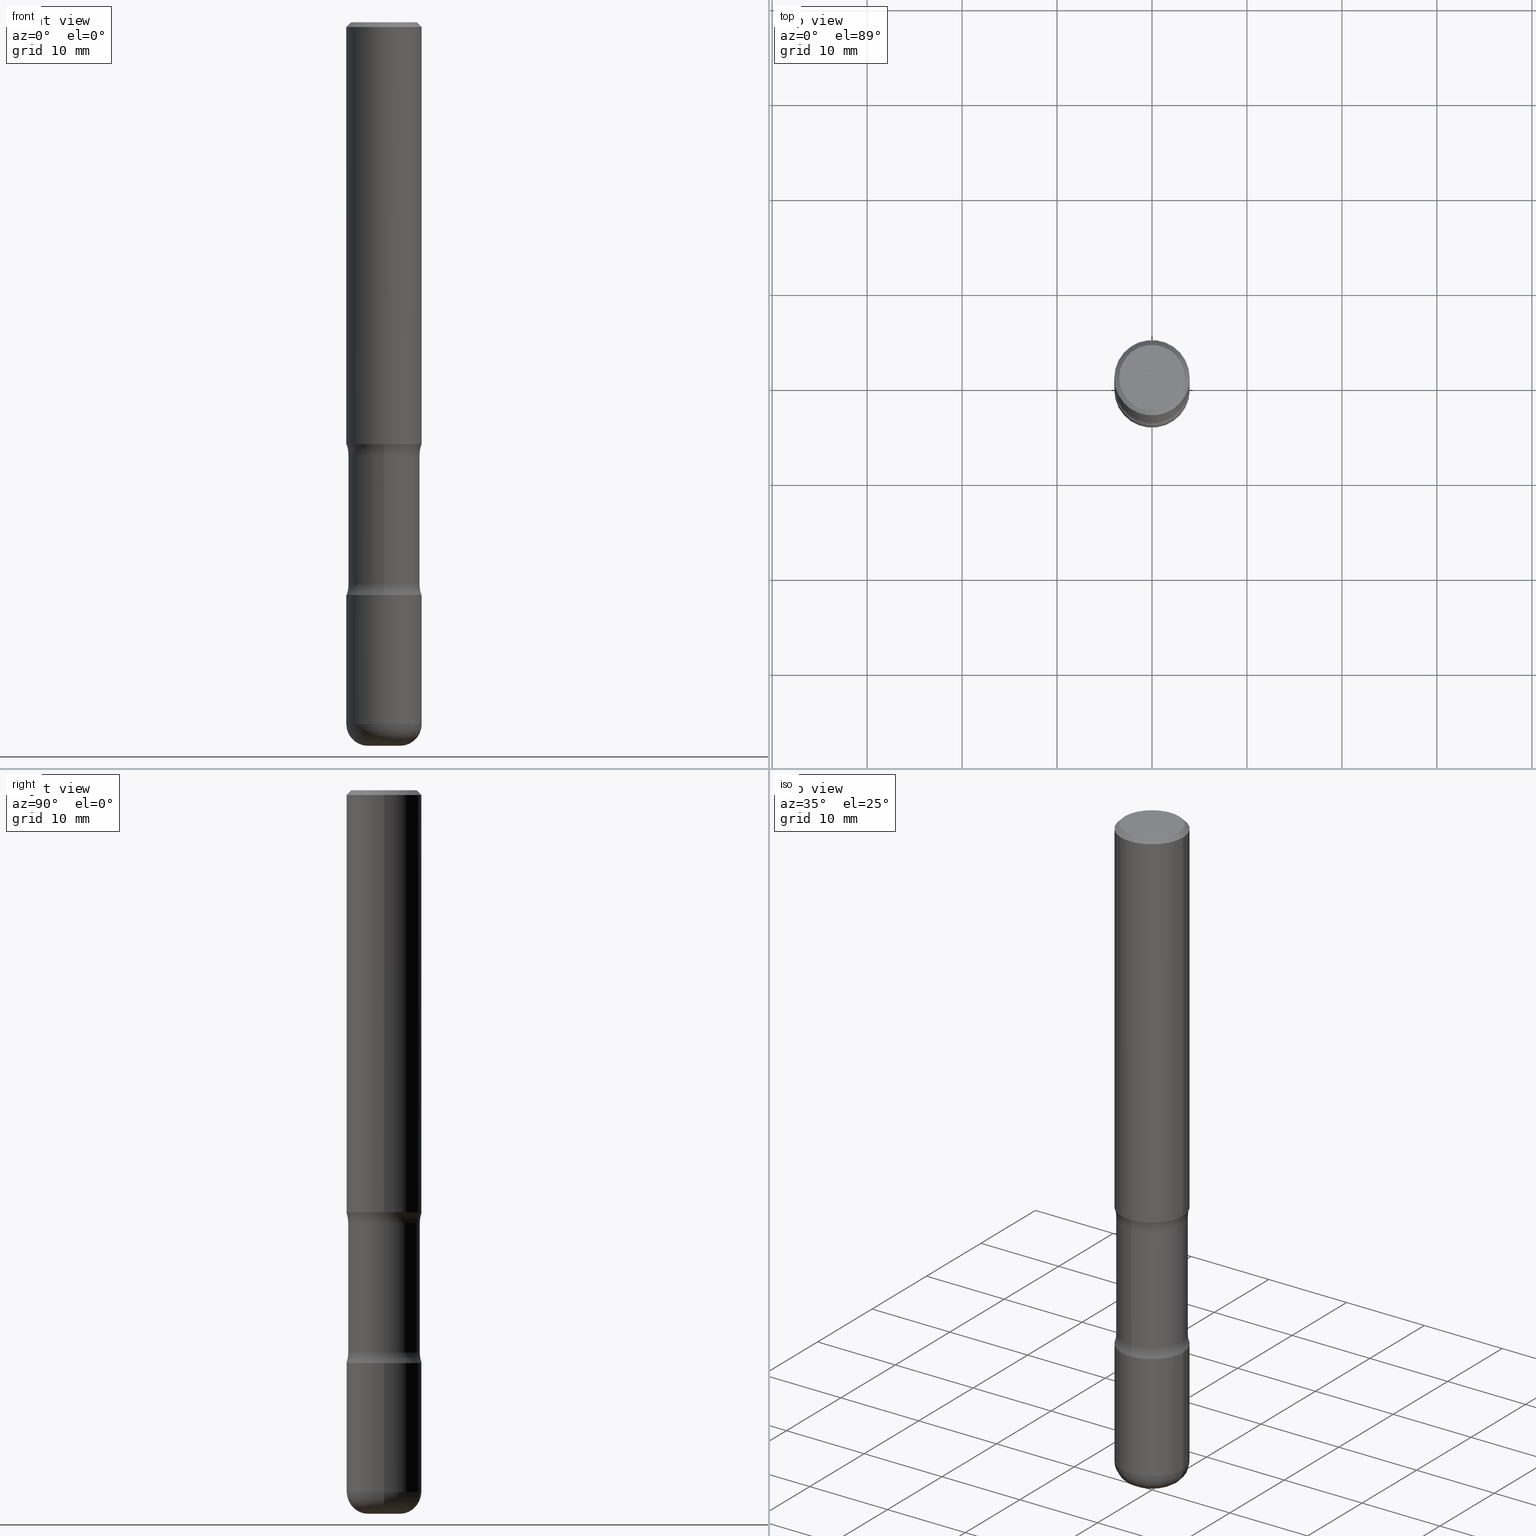
[diagram: canonical four-view strip — front | top / right | iso, engineering-drawing reading convention]
A machine part, canonical four-view strip (front | top / right | iso — engineering-drawing reading convention). The complete STEP part file that produces these views, byte-faithful:
ISO-10303-21;
HEADER;
FILE_DESCRIPTION (( 'STEP AP203' ),
    '1' );
FILE_NAME ('37829.STEP',
    '2024-03-02T00:37:00',
    ( '' ),
    ( '' ),
    'SwSTEP 2.0',
    'SolidWorks 2023',
    '' );
FILE_SCHEMA (( 'CONFIG_CONTROL_DESIGN' ));
ENDSEC;

DATA;
#1 = DIRECTION ( 'NONE',  ( 2.523926373086038410E-29, -3.379125637513666367E-15, -1.000000000000000000 ) ) ;
#2 = CARTESIAN_POINT ( 'NONE',  ( -0.1562499999999998612, 1.021258291611615284E-15, -0.02000000000000000042 ) ) ;
#3 = ORIENTED_EDGE ( 'NONE', *, *, #297, .F. ) ;
#4 = APPLICATION_CONTEXT ( 'configuration controlled 3d designs of mechanical parts and assemblies' ) ;
#5 = FACE_OUTER_BOUND ( 'NONE', #385, .T. ) ;
#6 = ORIENTED_EDGE ( 'NONE', *, *, #399, .F. ) ;
#7 = AXIS2_PLACEMENT_3D ( 'NONE', #480, #434, #231 ) ;
#8 = DIRECTION ( 'NONE',  ( -2.445468806185136597E-29, 3.491481338843145583E-15, 1.000000000000000000 ) ) ;
#9 = CIRCLE ( 'NONE', #58, 0.1562500000000000833 ) ;
#10 = CARTESIAN_POINT ( 'NONE',  ( 4.340320582405264943E-29, -6.327300400853882778E-15, -1.793498159084609966 ) ) ;
#11 = VERTEX_POINT ( 'NONE', #51 ) ;
#12 = DIRECTION ( 'NONE',  ( 1.000000000000000000, -6.982962677686270655E-15, 4.883557194083114583E-29 ) ) ;
#13 = ORIENTED_EDGE ( 'NONE', *, *, #205, .F. ) ;
#14 = EDGE_CURVE ( 'NONE', #130, #109, #290, .T. ) ;
#15 = DIRECTION ( 'NONE',  ( 6.982962677686266711E-15, 1.000000000000000000, -3.680805717779217644E-15 ) ) ;
#16 = DIRECTION ( 'NONE',  ( 2.523926373086038410E-29, -3.379125637513666367E-15, -1.000000000000000000 ) ) ;
#17 = AXIS2_PLACEMENT_3D ( 'NONE', #93, #222, #560 ) ;
#18 = APPROVAL_PERSON_ORGANIZATION ( #339, #287, #422 ) ;
#19 = DIRECTION ( 'NONE',  ( 2.523926373086038410E-29, -3.379125637513666367E-15, -1.000000000000000000 ) ) ;
#20 =( LENGTH_UNIT ( ) NAMED_UNIT ( * ) SI_UNIT ( $, .METRE. ) );
#21 = CARTESIAN_POINT ( 'NONE',  ( 0.1362499999999998712, -1.038262645562517138E-15, 6.957025900226689470E-30 ) ) ;
#22 = EDGE_CURVE ( 'NONE', #437, #301, #504, .T. ) ;
#23 = FACE_OUTER_BOUND ( 'NONE', #31, .T. ) ;
#24 = DIRECTION ( 'NONE',  ( 2.523926373086038410E-29, -3.379125637513666367E-15, -1.000000000000000000 ) ) ;
#25 = CARTESIAN_POINT ( 'NONE',  ( 0.000000000000000000, 0.000000000000000000, 0.000000000000000000 ) ) ;
#26 = AXIS2_PLACEMENT_3D ( 'NONE', #226, #531, #56 ) ;
#27 = CC_DESIGN_PERSON_AND_ORGANIZATION_ASSIGNMENT ( #417, #508, ( #279 ) ) ;
#28 = CARTESIAN_POINT ( 'NONE',  ( 4.279570410823989605E-29, -6.110092342975506249E-15, -1.750000000000000444 ) ) ;
#29 = PERSON_AND_ORGANIZATION ( #41, #525 ) ;
#30 = EDGE_CURVE ( 'NONE', #484, #266, #393, .T. ) ;
#31 = EDGE_LOOP ( 'NONE', ( #217, #64, #400, #133 ) ) ;
#32 = CIRCLE ( 'NONE', #395, 0.1250000000000000000 ) ;
#33 = LOCAL_TIME ( 19, 37, 0.000000000000000000, #210 ) ;
#34 = EDGE_LOOP ( 'NONE', ( #549, #510 ) ) ;
#35 = PERSON_AND_ORGANIZATION_ROLE ( 'design_supplier' ) ;
#36 = CARTESIAN_POINT ( 'NONE',  ( 7.116314225998750366E-29, -1.016021069603355624E-14, -2.910000000000001030 ) ) ;
#37 = EDGE_LOOP ( 'NONE', ( #80, #463, #452, #183 ) ) ;
#38 = SHAPE_DEFINITION_REPRESENTATION ( #120, #275 ) ;
#39 = ADVANCED_FACE ( 'NONE', ( #481 ), #356, .T. ) ;
#40 = DIRECTION ( 'NONE',  ( 2.523926373086038410E-29, -3.379125637513666367E-15, -1.000000000000000000 ) ) ;
#41 = PERSON ( 'UNSPECIFIED', 'UNSPECIFIED', 'UNSPECIFIED', ('UNSPECIFIED'), ('UNSPECIFIED'), ('UNSPECIFIED') ) ;
#42 = ORIENTED_EDGE ( 'NONE', *, *, #267, .F. ) ;
#43 = AXIS2_PLACEMENT_3D ( 'NONE', #237, #1, #235 ) ;
#44 = CARTESIAN_POINT ( 'NONE',  ( -0.1562500000000001110, -8.116016413267856641E-15, -2.375000000000000444 ) ) ;
#45 = VECTOR ( 'NONE', #351, 39.37007874015748143 ) ;
#46 = ORIENTED_EDGE ( 'NONE', *, *, #229, .T. ) ;
#47 = AXIS2_PLACEMENT_3D ( 'NONE', #244, #493, #448 ) ;
#48 = DIRECTION ( 'NONE',  ( -2.445468806185136597E-29, 3.491481338843145583E-15, 1.000000000000000000 ) ) ;
#49 = EDGE_CURVE ( 'NONE', #338, #171, #219, .T. ) ;
#50 = DIRECTION ( 'NONE',  ( 1.000000000000000000, -6.982962677686266711E-15, 0.000000000000000000 ) ) ;
#51 = CARTESIAN_POINT ( 'NONE',  ( -0.1562500000000000833, -1.979737960251025472E-15, -1.750000000000000444 ) ) ;
#52 = CARTESIAN_POINT ( 'NONE',  ( -0.06625000000000019762, -9.526848562748387493E-15, -3.000000000000001332 ) ) ;
#53 = CARTESIAN_POINT ( 'NONE',  ( 5.807988414689700538E-29, -8.292268179752471696E-15, -2.375000000000000444 ) ) ;
#54 = DIRECTION ( 'NONE',  ( 1.000000000000000000, -6.982962677686266711E-15, 4.876176775795936353E-29 ) ) ;
#55 = DIRECTION ( 'NONE',  ( 2.523926373086038410E-29, -3.379125637513666367E-15, -1.000000000000000000 ) ) ;
#56 = DIRECTION ( 'NONE',  ( 1.000000000000000000, -6.982962677686266711E-15, 4.876176775795936353E-29 ) ) ;
#57 = VECTOR ( 'NONE', #164, 39.37007874015748143 ) ;
#58 = AXIS2_PLACEMENT_3D ( 'NONE', #153, #114, #242 ) ;
#59 = CARTESIAN_POINT ( 'NONE',  ( -4.449379229173183633E-28, -8.469823856136963585E-14, -3.000000000000000888 ) ) ;
#60 = ORIENTED_EDGE ( 'NONE', *, *, #205, .T. ) ;
#61 = VERTEX_POINT ( 'NONE', #180 ) ;
#62 = CARTESIAN_POINT ( 'NONE',  ( 0.000000000000000000, 0.000000000000000000, 0.000000000000000000 ) ) ;
#63 = EDGE_CURVE ( 'NONE', #61, #88, #170, .T. ) ;
#64 = ORIENTED_EDGE ( 'NONE', *, *, #440, .T. ) ;
#65 = LINE ( 'NONE', #331, #544 ) ;
#66 = CARTESIAN_POINT ( 'NONE',  ( 1.036533522469128973E-15, 0.1484374999999896194, -3.000000000000000444 ) ) ;
#67 = DIRECTION ( 'NONE',  ( -2.445468806185136597E-29, 3.491481338843145583E-15, 1.000000000000000000 ) ) ;
#68 = CIRCLE ( 'NONE', #383, 0.1362499999999998712 ) ;
#69 = DIRECTION ( 'NONE',  ( 2.523926373086038410E-29, -3.379125637513666367E-15, -1.000000000000000000 ) ) ;
#70 = CARTESIAN_POINT ( 'NONE',  ( 7.336406418555413153E-29, -1.047444401652944109E-14, -3.000000000000001332 ) ) ;
#71 = FACE_OUTER_BOUND ( 'NONE', #342, .T. ) ;
#72 = CARTESIAN_POINT ( 'NONE',  ( -1.071952812151760391E-15, -0.1562500000000063560, -1.750000000000000000 ) ) ;
#73 = APPROVAL_PERSON_ORGANIZATION ( #307, #364, #337 ) ;
#74 = FACE_OUTER_BOUND ( 'NONE', #527, .T. ) ;
#75 = APPROVAL_STATUS ( 'not_yet_approved' ) ;
#76 = ADVANCED_FACE ( 'NONE', ( #149 ), #323, .F. ) ;
#77 = CARTESIAN_POINT ( 'NONE',  ( 4.279570410823989605E-29, -6.110092342975506249E-15, -1.750000000000000444 ) ) ;
#78 = ORIENTED_EDGE ( 'NONE', *, *, #239, .F. ) ;
#79 = PERSON_AND_ORGANIZATION ( #41, #525 ) ;
#80 = ORIENTED_EDGE ( 'NONE', *, *, #305, .F. ) ;
#81 = APPLICATION_PROTOCOL_DEFINITION ( 'international standard', 'config_control_design', 1994, #414 ) ;
#82 = TOROIDAL_SURFACE ( 'NONE', #358, 0.2734375000000000555, 0.1250000000000000000 ) ;
#83 = CIRCLE ( 'NONE', #450, 0.06625000000000019762 ) ;
#84 = EDGE_LOOP ( 'NONE', ( #336, #430, #419, #380 ) ) ;
#85 = CC_DESIGN_DATE_AND_TIME_ASSIGNMENT ( #168, #472, ( #251 ) ) ;
#86 = FACE_OUTER_BOUND ( 'NONE', #84, .T. ) ;
#87 = ORIENTED_EDGE ( 'NONE', *, *, #267, .T. ) ;
#88 = VERTEX_POINT ( 'NONE', #136 ) ;
#89 = DIRECTION ( 'NONE',  ( -0.7071067811865473507, 2.468850131082255088E-15, -0.7071067811865476838 ) ) ;
#90 = AXIS2_PLACEMENT_3D ( 'NONE', #135, #142, #533 ) ;
#91 = EDGE_LOOP ( 'NONE', ( #140, #348, #425, #474 ) ) ;
#92 = EDGE_CURVE ( 'NONE', #173, #437, #311, .T. ) ;
#93 = CARTESIAN_POINT ( 'NONE',  ( -1.875917421265595575E-15, -0.2734375000000081046, -2.331501840915390034 ) ) ;
#94 = ORIENTED_EDGE ( 'NONE', *, *, #535, .T. ) ;
#95 = CARTESIAN_POINT ( 'NONE',  ( 0.06625000000000019762, -1.093706529392615768E-14, -3.000000000000001332 ) ) ;
#96 = DIRECTION ( 'NONE',  ( 6.982962677686265133E-15, 1.000000000000000000, -3.680805717779217644E-15 ) ) ;
#97 = EDGE_LOOP ( 'NONE', ( #558, #102, #87, #272 ) ) ;
#98 = EDGE_CURVE ( 'NONE', #209, #464, #185, .T. ) ;
#99 = CIRCLE ( 'NONE', #118, 0.09000000000000020484 ) ;
#100 = AXIS2_PLACEMENT_3D ( 'NONE', #288, #16, #324 ) ;
#101 = CC_DESIGN_PERSON_AND_ORGANIZATION_ASSIGNMENT ( #29, #35, ( #359 ) ) ;
#102 = ORIENTED_EDGE ( 'NONE', *, *, #420, .T. ) ;
#103 = DIRECTION ( 'NONE',  ( -2.445468806185136597E-29, 3.491481338843145583E-15, 1.000000000000000000 ) ) ;
#104 = DIRECTION ( 'NONE',  ( -2.445468806185136597E-29, 3.491481338843145583E-15, 1.000000000000000000 ) ) ;
#105 = FACE_OUTER_BOUND ( 'NONE', #372, .T. ) ;
#106 = ADVANCED_FACE ( 'NONE', ( #195 ), #460, .T. ) ;
#107 = PRODUCT_RELATED_PRODUCT_CATEGORY ( 'detail', '', ( #279 ) ) ;
#108 = DIRECTION ( 'NONE',  ( 2.523926373086038410E-29, -3.379125637513666367E-15, -1.000000000000000000 ) ) ;
#109 = VERTEX_POINT ( 'NONE', #495 ) ;
#110 = FACE_OUTER_BOUND ( 'NONE', #401, .T. ) ;
#111 = CIRCLE ( 'NONE', #196, 0.1562500000000001110 ) ;
#112 = CIRCLE ( 'NONE', #177, 0.1562500000000001665 ) ;
#113 = CARTESIAN_POINT ( 'NONE',  ( 4.338252820539708503E-29, -6.330261553535058631E-15, -1.793498159084610410 ) ) ;
#114 = DIRECTION ( 'NONE',  ( -2.445468806185136597E-29, 3.491481338843145583E-15, 1.000000000000000000 ) ) ;
#115 = ADVANCED_FACE ( 'NONE', ( #71 ), #158, .F. ) ;
#116 = DIRECTION ( 'NONE',  ( 0.000000000000000000, 0.000000000000000000, 1.000000000000000000 ) ) ;
#117 = APPROVAL ( #300, 'UNSPECIFIED' ) ;
#118 = AXIS2_PLACEMENT_3D ( 'NONE', #270, #390, #476 ) ;
#119 = CC_DESIGN_APPROVAL ( #287, ( #359 ) ) ;
#120 = PRODUCT_DEFINITION_SHAPE ( 'NONE', 'NONE',  #251 ) ;
#121 = DIRECTION ( 'NONE',  ( 1.000000000000000000, -6.982962677686270655E-15, 4.883557194083114583E-29 ) ) ;
#122 = ORIENTED_EDGE ( 'NONE', *, *, #357, .F. ) ;
#123 = ORIENTED_EDGE ( 'NONE', *, *, #98, .T. ) ;
#124 = EDGE_CURVE ( 'NONE', #266, #484, #111, .T. ) ;
#125 = ORIENTED_EDGE ( 'NONE', *, *, #377, .T. ) ;
#126 = DATE_AND_TIME ( #371, #212 ) ;
#127 = TOROIDAL_SURFACE ( 'NONE', #547, 0.06625000000000018374, 0.09000000000000020484 ) ;
#128 = APPROVAL_PERSON_ORGANIZATION ( #176, #117, #174 ) ;
#129 = DIRECTION ( 'NONE',  ( -2.445468806185136597E-29, 3.491481338843145583E-15, 1.000000000000000000 ) ) ;
#130 = VERTEX_POINT ( 'NONE', #245 ) ;
#131 = CALENDAR_DATE ( 2024, 1, 3 ) ;
#132 = FACE_OUTER_BOUND ( 'NONE', #477, .T. ) ;
#133 = ORIENTED_EDGE ( 'NONE', *, *, #124, .F. ) ;
#134 = DIRECTION ( 'NONE',  ( 6.982962677686265922E-15, 1.000000000000000000, -3.496765431890254553E-15 ) ) ;
#135 = CARTESIAN_POINT ( 'NONE',  ( 5.807988414689700538E-29, -8.292268179752471696E-15, -2.375000000000000444 ) ) ;
#136 = CARTESIAN_POINT ( 'NONE',  ( -0.1562500000000002776, -9.049987671408398127E-15, -2.910000000000001030 ) ) ;
#137 = ADVANCED_FACE ( 'NONE', ( #538 ), #82, .F. ) ;
#138 = DIRECTION ( 'NONE',  ( 1.000000000000000000, -6.982962677686266711E-15, 4.876176775795936353E-29 ) ) ;
#139 = AXIS2_PLACEMENT_3D ( 'NONE', #313, #160, #326 ) ;
#140 = ORIENTED_EDGE ( 'NONE', *, *, #63, .T. ) ;
#141 = CIRCLE ( 'NONE', #100, 0.1562500000000001665 ) ;
#142 = DIRECTION ( 'NONE',  ( -2.523926373086038130E-29, 3.379125637513666367E-15, 1.000000000000000000 ) ) ;
#143 = DIRECTION ( 'NONE',  ( -6.982962677686265922E-15, -1.000000000000000000, 0.000000000000000000 ) ) ;
#144 = ORIENTED_EDGE ( 'NONE', *, *, #30, .T. ) ;
#145 = CARTESIAN_POINT ( 'NONE',  ( -1.045153991847964360E-15, -0.1484375000000063560, -1.793498159084609522 ) ) ;
#146 = CARTESIAN_POINT ( 'NONE',  ( -0.06625000000000018374, -9.689476133592488862E-15, -2.910000000000001030 ) ) ;
#147 = CARTESIAN_POINT ( 'NONE',  ( 7.116314225998750366E-29, -1.016021069603355624E-14, -2.910000000000001030 ) ) ;
#148 = FACE_OUTER_BOUND ( 'NONE', #295, .T. ) ;
#149 = FACE_OUTER_BOUND ( 'NONE', #34, .T. ) ;
#150 = CLOSED_SHELL ( 'NONE', ( #227, #199, #137, #156, #208, #327, #167, #172 ) ) ;
#151 = AXIS2_PLACEMENT_3D ( 'NONE', #191, #429, #143 ) ;
#152 = LOCAL_TIME ( 19, 37, 0.000000000000000000, #468 ) ;
#153 = CARTESIAN_POINT ( 'NONE',  ( 4.279570410823989605E-29, -6.110092342975506249E-15, -1.750000000000000444 ) ) ;
#154 = DIRECTION ( 'NONE',  ( 2.523926373086038410E-29, -3.379125637513666367E-15, -1.000000000000000000 ) ) ;
#155 = FACE_OUTER_BOUND ( 'NONE', #97, .T. ) ;
#156 = ADVANCED_FACE ( 'NONE', ( #360 ), #413, .F. ) ;
#157 = CC_DESIGN_PERSON_AND_ORGANIZATION_ASSIGNMENT ( #79, #257, ( #359 ) ) ;
#158 = PLANE ( 'NONE',  #374 ) ;
#159 = CARTESIAN_POINT ( 'NONE',  ( 4.890937612370273159E-31, -6.982962677686291609E-17, -0.02000000000000000042 ) ) ;
#160 = DIRECTION ( 'NONE',  ( 2.523926373086038410E-29, -3.379125637513666367E-15, -1.000000000000000000 ) ) ;
#161 = DIRECTION ( 'NONE',  ( 6.982962677686265922E-15, 1.000000000000000000, -3.379125637513666761E-15 ) ) ;
#162 = AXIS2_PLACEMENT_3D ( 'NONE', #280, #69, #411 ) ;
#163 = VECTOR ( 'NONE', #154, 39.37007874015748143 ) ;
#164 = DIRECTION ( 'NONE',  ( -2.445468806185136877E-29, 3.491481338843145188E-15, 1.000000000000000000 ) ) ;
#165 = AXIS2_PLACEMENT_3D ( 'NONE', #330, #197, #361 ) ;
#166 = DIRECTION ( 'NONE',  ( 2.445468806185136597E-29, -3.491481338843145583E-15, -1.000000000000000000 ) ) ;
#167 = ADVANCED_FACE ( 'NONE', ( #240 ), #321, .F. ) ;
#168 = DATE_AND_TIME ( #296, #233 ) ;
#169 = ORIENTED_EDGE ( 'NONE', *, *, #524, .T. ) ;
#170 = CIRCLE ( 'NONE', #557, 0.1562500000000001665 ) ;
#171 = VERTEX_POINT ( 'NONE', #21 ) ;
#172 = ADVANCED_FACE ( 'NONE', ( #492 ), #328, .T. ) ;
#173 = VERTEX_POINT ( 'NONE', #198 ) ;
#174 = APPROVAL_ROLE ( '' ) ;
#175 = EDGE_LOOP ( 'NONE', ( #213, #200 ) ) ;
#176 = PERSON_AND_ORGANIZATION ( #41, #525 ) ;
#177 = AXIS2_PLACEMENT_3D ( 'NONE', #181, #346, #202 ) ;
#178 = ORIENTED_EDGE ( 'NONE', *, *, #535, .F. ) ;
#179 = DIRECTION ( 'NONE',  ( 6.982962677686266711E-15, 1.000000000000000000, -3.496765431890253370E-15 ) ) ;
#180 = CARTESIAN_POINT ( 'NONE',  ( 0.1562500000000002776, -1.125129861442203936E-14, -2.910000000000001030 ) ) ;
#181 = CARTESIAN_POINT ( 'NONE',  ( 7.116314225998750366E-29, -1.016021069603355624E-14, -2.910000000000001030 ) ) ;
#182 = CYLINDRICAL_SURFACE ( 'NONE', #329, 0.1562500000000001388 ) ;
#183 = ORIENTED_EDGE ( 'NONE', *, *, #22, .T. ) ;
#184 = LINE ( 'NONE', #318, #45 ) ;
#185 = CIRCLE ( 'NONE', #349, 0.1562499999999998612 ) ;
#186 = ORIENTED_EDGE ( 'NONE', *, *, #355, .F. ) ;
#187 =( GEOMETRIC_REPRESENTATION_CONTEXT ( 3 ) GLOBAL_UNCERTAINTY_ASSIGNED_CONTEXT ( ( #294 ) ) GLOBAL_UNIT_ASSIGNED_CONTEXT ( ( #499, #363, #203 ) ) REPRESENTATION_CONTEXT ( 'NONE', 'WORKASPACE' ) );
#188 = DIRECTION ( 'NONE',  ( 1.000000000000000000, -6.982962677686264344E-15, 0.000000000000000000 ) ) ;
#189 = ADVANCED_FACE ( 'NONE', ( #155 ), #449, .T. ) ;
#190 = DESIGN_CONTEXT ( 'detailed design', #414, 'design' ) ;
#191 = CARTESIAN_POINT ( 'NONE',  ( 1.909403857179882138E-15, 0.2734374999999937272, -1.793498159084611077 ) ) ;
#192 = ORIENTED_EDGE ( 'NONE', *, *, #494, .F. ) ;
#193 = DIRECTION ( 'NONE',  ( 1.000000000000000000, -6.982962677686270655E-15, 0.000000000000000000 ) ) ;
#194 = APPLICATION_PROTOCOL_DEFINITION ( 'international standard', 'config_control_design', 1994, #4 ) ;
#195 = FACE_OUTER_BOUND ( 'NONE', #539, .T. ) ;
#196 = AXIS2_PLACEMENT_3D ( 'NONE', #365, #455, #408 ) ;
#197 = DIRECTION ( 'NONE',  ( -2.445468806185136597E-29, 3.491481338843145583E-15, 1.000000000000000000 ) ) ;
#198 = CARTESIAN_POINT ( 'NONE',  ( 1.036533522469098602E-15, 0.1484374999999936995, -1.793498159084610633 ) ) ;
#199 = ADVANCED_FACE ( 'NONE', ( #86 ), #478, .F. ) ;
#200 = ORIENTED_EDGE ( 'NONE', *, *, #433, .T. ) ;
#201 = DIRECTION ( 'NONE',  ( -1.000000000000000000, 6.982962677686265922E-15, -4.876176775795935793E-29 ) ) ;
#202 = DIRECTION ( 'NONE',  ( 1.000000000000000000, -6.982962677686268288E-15, 0.000000000000000000 ) ) ;
#203 =( NAMED_UNIT ( * ) SI_UNIT ( $, .STERADIAN. ) SOLID_ANGLE_UNIT ( ) );
#204 = AXIS2_PLACEMENT_3D ( 'NONE', #451, #19, #161 ) ;
#205 = EDGE_CURVE ( 'NONE', #11, #445, #382, .T. ) ;
#206 = DIRECTION ( 'NONE',  ( 2.523926373086038130E-29, -3.379125637513666367E-15, -1.000000000000000000 ) ) ;
#207 = SECURITY_CLASSIFICATION_LEVEL ( 'unclassified' ) ;
#208 = ADVANCED_FACE ( 'NONE', ( #74 ), #249, .F. ) ;
#209 = VERTEX_POINT ( 'NONE', #397 ) ;
#210 = COORDINATED_UNIVERSAL_TIME_OFFSET ( 5, 0, .BEHIND. ) ;
#211 = CC_DESIGN_DATE_AND_TIME_ASSIGNMENT ( #503, #216, ( #442 ) ) ;
#212 = LOCAL_TIME ( 19, 37, 0.000000000000000000, #513 ) ;
#213 = ORIENTED_EDGE ( 'NONE', *, *, #14, .T. ) ;
#214 = PERSON_AND_ORGANIZATION ( #41, #525 ) ;
#215 = ORIENTED_EDGE ( 'NONE', *, *, #555, .T. ) ;
#216 = DATE_TIME_ROLE ( 'classification_date' ) ;
#217 = ORIENTED_EDGE ( 'NONE', *, *, #362, .F. ) ;
#218 = PLANE ( 'NONE',  #90 ) ;
#219 = CIRCLE ( 'NONE', #340, 0.1362499999999998712 ) ;
#220 = CARTESIAN_POINT ( 'NONE',  ( -1.045153991847949569E-15, -0.1484375000000081601, -2.331501840915390034 ) ) ;
#221 = EDGE_LOOP ( 'NONE', ( #169, #271, #258, #42 ) ) ;
#222 = DIRECTION ( 'NONE',  ( 1.000000000000000000, -6.860497997771530774E-15, 4.842174840124134267E-29 ) ) ;
#223 = CARTESIAN_POINT ( 'NONE',  ( 5.698202263795362163E-29, -8.145282435205020267E-15, -2.331501840915390478 ) ) ;
#224 = CARTESIAN_POINT ( 'NONE',  ( -0.1362499999999998712, 9.863434782231840290E-16, -6.775751096333132877E-30 ) ) ;
#225 = CARTESIAN_POINT ( 'NONE',  ( 1.091087918388522561E-15, 0.1562499999999940048, -1.750000000000001110 ) ) ;
#226 = CARTESIAN_POINT ( 'NONE',  ( 0.000000000000000000, 0.000000000000000000, 0.000000000000000000 ) ) ;
#227 = ADVANCED_FACE ( 'NONE', ( #5 ), #268, .T. ) ;
#228 = DIRECTION ( 'NONE',  ( -1.000000000000000000, 6.982962677686265922E-15, -4.876176775795935793E-29 ) ) ;
#229 = EDGE_CURVE ( 'NONE', #379, #173, #263, .T. ) ;
#230 = AXIS2_PLACEMENT_3D ( 'NONE', #146, #438, #384 ) ;
#231 = DIRECTION ( 'NONE',  ( 1.000000000000000000, -6.982962677686265922E-15, 4.876176775795935793E-29 ) ) ;
#232 = VERTEX_POINT ( 'NONE', #225 ) ;
#233 = LOCAL_TIME ( 19, 37, 0.000000000000000000, #546 ) ;
#234 = ORIENTED_EDGE ( 'NONE', *, *, #229, .F. ) ;
#235 = DIRECTION ( 'NONE',  ( 6.982962677686265922E-15, 1.000000000000000000, -3.496765431890254553E-15 ) ) ;
#236 = CARTESIAN_POINT ( 'NONE',  ( 7.336406418555413153E-29, -1.047444401652944109E-14, -3.000000000000001332 ) ) ;
#237 = CARTESIAN_POINT ( 'NONE',  ( 5.807988414689700538E-29, -8.292268179752471696E-15, -2.375000000000000444 ) ) ;
#238 = DIRECTION ( 'NONE',  ( 0.7071067811865473507, -7.319954787623256045E-15, -0.7071067811865476838 ) ) ;
#239 = EDGE_CURVE ( 'NONE', #379, #301, #184, .T. ) ;
#240 = FACE_OUTER_BOUND ( 'NONE', #37, .T. ) ;
#241 = CIRCLE ( 'NONE', #139, 0.1484375000000000278 ) ;
#242 = DIRECTION ( 'NONE',  ( 1.000000000000000000, -6.982962677686265133E-15, 0.000000000000000000 ) ) ;
#243 = CARTESIAN_POINT ( 'NONE',  ( 4.890937612370273159E-31, -6.982962677686291609E-17, -0.02000000000000000042 ) ) ;
#244 = CARTESIAN_POINT ( 'NONE',  ( 1.909403857179895154E-15, 0.2734374999999918399, -2.331501840915391366 ) ) ;
#245 = CARTESIAN_POINT ( 'NONE',  ( 1.091087918388537746E-15, 0.1562499999999918121, -2.375000000000000888 ) ) ;
#246 = EDGE_CURVE ( 'NONE', #338, #464, #483, .T. ) ;
#247 = VECTOR ( 'NONE', #317, 39.37007874015748143 ) ;
#248 = DIRECTION ( 'NONE',  ( 1.000000000000000000, -6.860497997771530774E-15, 4.842174840124134267E-29 ) ) ;
#249 = PLANE ( 'NONE',  #505 ) ;
#250 = DIRECTION ( 'NONE',  ( 1.000000000000000000, 0.000000000000000000, 0.000000000000000000 ) ) ;
#251 = PRODUCT_DEFINITION ( 'UNKNOWN', '', #359, #190 ) ;
#252 = VERTEX_POINT ( 'NONE', #52 ) ;
#253 = ORIENTED_EDGE ( 'NONE', *, *, #555, .F. ) ;
#254 = PERSON_AND_ORGANIZATION ( #41, #525 ) ;
#255 = CIRCLE ( 'NONE', #230, 0.09000000000000020484 ) ;
#256 = VERTEX_POINT ( 'NONE', #95 ) ;
#257 = PERSON_AND_ORGANIZATION_ROLE ( 'creator' ) ;
#258 = ORIENTED_EDGE ( 'NONE', *, *, #63, .F. ) ;
#259 = EDGE_CURVE ( 'NONE', #173, #232, #282, .T. ) ;
#260 = DIRECTION ( 'NONE',  ( 2.523926373086038410E-29, -3.379125637513666367E-15, -1.000000000000000000 ) ) ;
#261 = ORIENTED_EDGE ( 'NONE', *, *, #509, .T. ) ;
#262 = AXIS2_PLACEMENT_3D ( 'NONE', #223, #316, #96 ) ;
#263 = CIRCLE ( 'NONE', #303, 0.1484375000000000278 ) ;
#264 = CC_DESIGN_SECURITY_CLASSIFICATION ( #442, ( #359 ) ) ;
#265 = PLANE ( 'NONE',  #7 ) ;
#266 = VERTEX_POINT ( 'NONE', #44 ) ;
#267 = EDGE_CURVE ( 'NONE', #256, #61, #99, .T. ) ;
#268 = CYLINDRICAL_SURFACE ( 'NONE', #292, 0.1484375000000000000 ) ;
#269 = ORIENTED_EDGE ( 'NONE', *, *, #246, .F. ) ;
#270 = CARTESIAN_POINT ( 'NONE',  ( 0.06625000000000018374, -1.062283197343027283E-14, -2.910000000000001030 ) ) ;
#271 = ORIENTED_EDGE ( 'NONE', *, *, #278, .T. ) ;
#272 = ORIENTED_EDGE ( 'NONE', *, *, #440, .F. ) ;
#273 = AXIS2_PLACEMENT_3D ( 'NONE', #343, #520, #134 ) ;
#274 = DIRECTION ( 'NONE',  ( -2.445468806185136597E-29, 3.491481338843145583E-15, 1.000000000000000000 ) ) ;
#275 = ADVANCED_BREP_SHAPE_REPRESENTATION ( '37829', ( #528, #345, #519, #350 ), #187 ) ;
#276 = ORIENTED_EDGE ( 'NONE', *, *, #124, .T. ) ;
#277 = CARTESIAN_POINT ( 'NONE',  ( 0.1562500000000000833, -7.201180261363985422E-15, -1.750000000000000444 ) ) ;
#278 = EDGE_CURVE ( 'NONE', #252, #88, #255, .T. ) ;
#279 = PRODUCT ( '37829', '37829', '', ( #516 ) ) ;
#280 = CARTESIAN_POINT ( 'NONE',  ( 5.701615023521807970E-29, -8.140395169034527718E-15, -2.331501840915390478 ) ) ;
#281 = CYLINDRICAL_SURFACE ( 'NONE', #368, 0.1562499999999999722 ) ;
#282 = CIRCLE ( 'NONE', #151, 0.1250000000000000000 ) ;
#283 = CIRCLE ( 'NONE', #47, 0.1250000000000000000 ) ;
#284 = ADVANCED_FACE ( 'NONE', ( #132 ), #265, .F. ) ;
#285 = CARTESIAN_POINT ( 'NONE',  ( 5.807988414689700538E-29, -8.292268179752471696E-15, -2.375000000000000444 ) ) ;
#286 = EDGE_LOOP ( 'NONE', ( #253, #60, #320, #3 ) ) ;
#287 = APPROVAL ( #373, 'UNSPECIFIED' ) ;
#288 = CARTESIAN_POINT ( 'NONE',  ( 4.230534431510926007E-29, -6.180314656306430561E-15, -1.750000000000000444 ) ) ;
#289 = DIRECTION ( 'NONE',  ( -2.445468806185136877E-29, 3.491481338843145188E-15, 1.000000000000000000 ) ) ;
#290 = CIRCLE ( 'NONE', #43, 0.1562500000000001110 ) ;
#291 = COORDINATED_UNIVERSAL_TIME_OFFSET ( 5, 0, .BEHIND. ) ;
#292 = AXIS2_PLACEMENT_3D ( 'NONE', #526, #55, #529 ) ;
#293 = CIRCLE ( 'NONE', #432, 0.1484375000000000000 ) ;
#294 = UNCERTAINTY_MEASURE_WITH_UNIT (LENGTH_MEASURE( 1.000000000000000082E-05 ), #499, 'distance_accuracy_value', 'NONE');
#295 = EDGE_LOOP ( 'NONE', ( #306, #309 ) ) ;
#296 = CALENDAR_DATE ( 2024, 1, 3 ) ;
#297 = EDGE_CURVE ( 'NONE', #464, #209, #314, .T. ) ;
#298 = CARTESIAN_POINT ( 'NONE',  ( 5.701615023521807970E-29, -8.140395169034527718E-15, -2.331501840915390478 ) ) ;
#299 = ORIENTED_EDGE ( 'NONE', *, *, #239, .T. ) ;
#300 = APPROVAL_STATUS ( 'not_yet_approved' ) ;
#301 = VERTEX_POINT ( 'NONE', #220 ) ;
#302 = APPROVAL_DATE_TIME ( #126, #364 ) ;
#303 = AXIS2_PLACEMENT_3D ( 'NONE', #10, #260, #436 ) ;
#304 = VECTOR ( 'NONE', #238, 39.37007874015748143 ) ;
#305 = EDGE_CURVE ( 'NONE', #109, #301, #431, .T. ) ;
#306 = ORIENTED_EDGE ( 'NONE', *, *, #524, .F. ) ;
#307 = PERSON_AND_ORGANIZATION ( #41, #525 ) ;
#308 = CARTESIAN_POINT ( 'NONE',  ( 4.890937612370273159E-31, -6.982962677686291609E-17, -0.02000000000000000042 ) ) ;
#309 = ORIENTED_EDGE ( 'NONE', *, *, #420, .F. ) ;
#310 = CARTESIAN_POINT ( 'NONE',  ( 1.036533522469112013E-15, 0.1484374999999918399, -2.331501840915391366 ) ) ;
#311 = LINE ( 'NONE', #66, #163 ) ;
#312 = ADVANCED_FACE ( 'NONE', ( #388 ), #182, .T. ) ;
#313 = CARTESIAN_POINT ( 'NONE',  ( 4.340320582405264943E-29, -6.327300400853882778E-15, -1.793498159084609966 ) ) ;
#314 = CIRCLE ( 'NONE', #543, 0.1562499999999998612 ) ;
#315 = FACE_OUTER_BOUND ( 'NONE', #175, .T. ) ;
#316 = DIRECTION ( 'NONE',  ( 2.523926373086038410E-29, -3.379125637513666367E-15, -1.000000000000000000 ) ) ;
#317 = DIRECTION ( 'NONE',  ( -2.445468806185136877E-29, 3.491481338843145188E-15, 1.000000000000000000 ) ) ;
#318 = CARTESIAN_POINT ( 'NONE',  ( -1.018355171544137761E-15, -0.1484375000000104083, -2.999999999999999112 ) ) ;
#319 = ORIENTED_EDGE ( 'NONE', *, *, #92, .F. ) ;
#320 = ORIENTED_EDGE ( 'NONE', *, *, #494, .T. ) ;
#321 = TOROIDAL_SURFACE ( 'NONE', #162, 0.2734375000000000000, 0.1250000000000000000 ) ;
#322 = AXIS2_PLACEMENT_3D ( 'NONE', #159, #166, #446 ) ;
#323 = PLANE ( 'NONE',  #496 ) ;
#324 = DIRECTION ( 'NONE',  ( 6.982962677686266711E-15, 1.000000000000000000, -3.496765431890253370E-15 ) ) ;
#325 = DIRECTION ( 'NONE',  ( 6.982962677686265922E-15, 1.000000000000000000, -3.379125637513666761E-15 ) ) ;
#326 = DIRECTION ( 'NONE',  ( 6.982962677686265133E-15, 1.000000000000000000, -3.680805717779216855E-15 ) ) ;
#327 = ADVANCED_FACE ( 'NONE', ( #315 ), #218, .F. ) ;
#328 = CYLINDRICAL_SURFACE ( 'NONE', #367, 0.1484375000000000000 ) ;
#329 = AXIS2_PLACEMENT_3D ( 'NONE', #347, #522, #138 ) ;
#330 = CARTESIAN_POINT ( 'NONE',  ( 0.000000000000000000, 0.000000000000000000, 0.000000000000000000 ) ) ;
#331 = CARTESIAN_POINT ( 'NONE',  ( 0.1562499999999999722, -1.091087918388478976E-15, 7.619026212181148976E-30 ) ) ;
#332 = APPROVAL_DATE_TIME ( #415, #287 ) ;
#333 = ORIENTED_EDGE ( 'NONE', *, *, #517, .T. ) ;
#334 = VECTOR ( 'NONE', #89, 39.37007874015748143 ) ;
#335 = ORIENTED_EDGE ( 'NONE', *, *, #22, .F. ) ;
#336 = ORIENTED_EDGE ( 'NONE', *, *, #433, .F. ) ;
#337 = APPROVAL_ROLE ( '' ) ;
#338 = VERTEX_POINT ( 'NONE', #224 ) ;
#339 = PERSON_AND_ORGANIZATION ( #41, #525 ) ;
#340 = AXIS2_PLACEMENT_3D ( 'NONE', #354, #398, #530 ) ;
#341 = DIRECTION ( 'NONE',  ( -2.445468806185136597E-29, 3.491481338843145583E-15, 1.000000000000000000 ) ) ;
#342 = EDGE_LOOP ( 'NONE', ( #144, #276 ) ) ;
#343 = CARTESIAN_POINT ( 'NONE',  ( 5.807988414689700538E-29, -8.292268179752471696E-15, -2.375000000000000444 ) ) ;
#344 = DIRECTION ( 'NONE',  ( 2.438088387897960049E-29, -3.491481338843145188E-15, -1.000000000000000000 ) ) ;
#345 = MANIFOLD_SOLID_BREP ( 'Body-Move/Copy2[2]', #381 ) ;
#346 = DIRECTION ( 'NONE',  ( -2.445468806185136597E-29, 3.491481338843145583E-15, 1.000000000000000000 ) ) ;
#347 = CARTESIAN_POINT ( 'NONE',  ( 0.000000000000000000, 0.000000000000000000, 0.000000000000000000 ) ) ;
#348 = ORIENTED_EDGE ( 'NONE', *, *, #362, .T. ) ;
#349 = AXIS2_PLACEMENT_3D ( 'NONE', #243, #104, #534 ) ;
#350 = AXIS2_PLACEMENT_3D ( 'NONE', #511, #116, #250 ) ;
#351 = DIRECTION ( 'NONE',  ( 2.523926373086038410E-29, -3.379125637513666367E-15, -1.000000000000000000 ) ) ;
#352 = EDGE_LOOP ( 'NONE', ( #234, #471, #94, #421 ) ) ;
#353 = CARTESIAN_POINT ( 'NONE',  ( 7.116314225998750366E-29, -1.016021069603355624E-14, -2.910000000000001030 ) ) ;
#354 = CARTESIAN_POINT ( 'NONE',  ( 0.000000000000000000, 0.000000000000000000, 0.000000000000000000 ) ) ;
#355 = EDGE_CURVE ( 'NONE', #173, #379, #241, .T. ) ;
#356 = CYLINDRICAL_SURFACE ( 'NONE', #26, 0.1562499999999999722 ) ;
#357 = EDGE_CURVE ( 'NONE', #379, #486, #32, .T. ) ;
#358 = AXIS2_PLACEMENT_3D ( 'NONE', #113, #108, #325 ) ;
#359 = PRODUCT_DEFINITION_FORMATION_WITH_SPECIFIED_SOURCE ( 'ANY', '', #279, .NOT_KNOWN. ) ;
#360 = FACE_OUTER_BOUND ( 'NONE', #512, .T. ) ;
#361 = DIRECTION ( 'NONE',  ( 1.000000000000000000, -6.982962677686266711E-15, 4.876176775795936353E-29 ) ) ;
#362 = EDGE_CURVE ( 'NONE', #88, #266, #410, .T. ) ;
#363 =( NAMED_UNIT ( * ) PLANE_ANGLE_UNIT ( ) SI_UNIT ( $, .RADIAN. ) );
#364 = APPROVAL ( #75, 'UNSPECIFIED' ) ;
#365 = CARTESIAN_POINT ( 'NONE',  ( 5.807988414689700538E-29, -8.292268179752471696E-15, -2.375000000000000444 ) ) ;
#366 = DIRECTION ( 'NONE',  ( 1.000000000000000000, -6.982962677686266711E-15, 4.876176775795936353E-29 ) ) ;
#367 = AXIS2_PLACEMENT_3D ( 'NONE', #406, #24, #15 ) ;
#368 = AXIS2_PLACEMENT_3D ( 'NONE', #25, #67, #366 ) ;
#369 = LENGTH_MEASURE_WITH_UNIT ( LENGTH_MEASURE( 0.02539999999999999897 ), #20 );
#370 = ADVANCED_FACE ( 'NONE', ( #500 ), #127, .T. ) ;
#371 = CALENDAR_DATE ( 2024, 1, 3 ) ;
#372 = EDGE_LOOP ( 'NONE', ( #333, #215, #551, #192 ) ) ;
#373 = APPROVAL_STATUS ( 'not_yet_approved' ) ;
#374 = AXIS2_PLACEMENT_3D ( 'NONE', #285, #447, #201 ) ;
#375 = ORIENTED_EDGE ( 'NONE', *, *, #377, .F. ) ;
#376 = APPROVAL_DATE_TIME ( #554, #117 ) ;
#377 = EDGE_CURVE ( 'NONE', #232, #486, #441, .T. ) ;
#378 = CC_DESIGN_PERSON_AND_ORGANIZATION_ASSIGNMENT ( #254, #465, ( #251 ) ) ;
#379 = VERTEX_POINT ( 'NONE', #145 ) ;
#380 = ORIENTED_EDGE ( 'NONE', *, *, #501, .F. ) ;
#381 = CLOSED_SHELL ( 'NONE', ( #550, #458, #106, #76, #284, #39 ) ) ;
#382 = CIRCLE ( 'NONE', #466, 0.1562500000000000833 ) ;
#383 = AXIS2_PLACEMENT_3D ( 'NONE', #62, #482, #54 ) ;
#384 = DIRECTION ( 'NONE',  ( -1.000000000000000000, 7.105427357600996337E-15, 0.000000000000000000 ) ) ;
#385 = EDGE_LOOP ( 'NONE', ( #391, #299, #335, #319 ) ) ;
#386 = LINE ( 'NONE', #485, #247 ) ;
#387 = EDGE_CURVE ( 'NONE', #61, #484, #386, .T. ) ;
#388 = FACE_OUTER_BOUND ( 'NONE', #91, .T. ) ;
#389 = ORIENTED_EDGE ( 'NONE', *, *, #246, .T. ) ;
#390 = DIRECTION ( 'NONE',  ( -6.982962677686266711E-15, -1.000000000000000000, 3.491481338843145583E-15 ) ) ;
#391 = ORIENTED_EDGE ( 'NONE', *, *, #355, .T. ) ;
#392 = DIRECTION ( 'NONE',  ( 2.438088387897960049E-29, -3.491481338843145188E-15, -1.000000000000000000 ) ) ;
#393 = CIRCLE ( 'NONE', #405, 0.1562500000000001110 ) ;
#394 = DIMENSIONAL_EXPONENTS ( 1.000000000000000000, 0.000000000000000000, 0.000000000000000000, 0.000000000000000000, 0.000000000000000000, 0.000000000000000000, 0.000000000000000000 ) ;
#395 = AXIS2_PLACEMENT_3D ( 'NONE', #454, #248, #491 ) ;
#396 = AXIS2_PLACEMENT_3D ( 'NONE', #59, #392, #228 ) ;
#397 = CARTESIAN_POINT ( 'NONE',  ( 0.1562499999999998612, -1.141782438928663922E-15, -0.02000000000000000042 ) ) ;
#398 = DIRECTION ( 'NONE',  ( -2.445468806185136597E-29, 3.491481338843145583E-15, 1.000000000000000000 ) ) ;
#399 = EDGE_CURVE ( 'NONE', #171, #338, #68, .T. ) ;
#400 = ORIENTED_EDGE ( 'NONE', *, *, #387, .T. ) ;
#401 = EDGE_LOOP ( 'NONE', ( #6, #261, #123, #269 ) ) ;
#402 = DIRECTION ( 'NONE',  ( 2.523926373086038410E-29, -3.379125637513666367E-15, -1.000000000000000000 ) ) ;
#403 = DIRECTION ( 'NONE',  ( 2.445468806185136597E-29, -3.491481338843145583E-15, -1.000000000000000000 ) ) ;
#404 = DIRECTION ( 'NONE',  ( 1.000000000000000000, -6.982962677686264344E-15, 0.000000000000000000 ) ) ;
#405 = AXIS2_PLACEMENT_3D ( 'NONE', #53, #439, #193 ) ;
#406 = CARTESIAN_POINT ( 'NONE',  ( 7.385442397868472267E-29, -1.040422170319851125E-14, -2.999999999999999556 ) ) ;
#407 = CARTESIAN_POINT ( 'NONE',  ( -0.1562499999999999722, 1.110223024625156343E-15, -7.685836078523288357E-30 ) ) ;
#408 = DIRECTION ( 'NONE',  ( 1.000000000000000000, -6.982962677686270655E-15, 0.000000000000000000 ) ) ;
#409 = CARTESIAN_POINT ( 'NONE',  ( 5.698202263795362163E-29, -8.145282435205020267E-15, -2.331501840915390478 ) ) ;
#410 = LINE ( 'NONE', #541, #57 ) ;
#411 = DIRECTION ( 'NONE',  ( 6.982962677686265922E-15, 1.000000000000000000, -3.379125637513666761E-15 ) ) ;
#412 = LINE ( 'NONE', #490, #304 ) ;
#413 = TOROIDAL_SURFACE ( 'NONE', #204, 0.2734375000000000555, 0.1250000000000000000 ) ;
#414 = APPLICATION_CONTEXT ( 'configuration controlled 3d designs of mechanical parts and assemblies' ) ;
#415 = DATE_AND_TIME ( #131, #152 ) ;
#416 = ADVANCED_FACE ( 'NONE', ( #148 ), #487, .T. ) ;
#417 = PERSON_AND_ORGANIZATION ( #41, #525 ) ;
#418 = DIRECTION ( 'NONE',  ( 6.982962677686265922E-15, 1.000000000000000000, -3.379125637513666367E-15 ) ) ;
#419 = ORIENTED_EDGE ( 'NONE', *, *, #475, .T. ) ;
#420 = EDGE_CURVE ( 'NONE', #252, #256, #559, .T. ) ;
#421 = ORIENTED_EDGE ( 'NONE', *, *, #259, .F. ) ;
#422 = APPROVAL_ROLE ( '' ) ;
#423 = AXIS2_PLACEMENT_3D ( 'NONE', #298, #40, #556 ) ;
#424 = VECTOR ( 'NONE', #536, 39.37007874015748143 ) ;
#425 = ORIENTED_EDGE ( 'NONE', *, *, #30, .F. ) ;
#426 = CALENDAR_DATE ( 2024, 1, 3 ) ;
#427 = ORIENTED_EDGE ( 'NONE', *, *, #517, .F. ) ;
#428 = CC_DESIGN_PERSON_AND_ORGANIZATION_ASSIGNMENT ( #214, #552, ( #442 ) ) ;
#429 = DIRECTION ( 'NONE',  ( -1.000000000000000000, 6.982962677686265922E-15, -4.883557194083112340E-29 ) ) ;
#430 = ORIENTED_EDGE ( 'NONE', *, *, #305, .T. ) ;
#431 = CIRCLE ( 'NONE', #17, 0.1250000000000000000 ) ;
#432 = AXIS2_PLACEMENT_3D ( 'NONE', #409, #402, #456 ) ;
#433 = EDGE_CURVE ( 'NONE', #109, #130, #469, .T. ) ;
#434 = DIRECTION ( 'NONE',  ( -2.438088387897960049E-29, 3.491481338843145188E-15, 1.000000000000000000 ) ) ;
#435 = ORIENTED_EDGE ( 'NONE', *, *, #297, .T. ) ;
#436 = DIRECTION ( 'NONE',  ( 6.982962677686265133E-15, 1.000000000000000000, -3.680805717779216855E-15 ) ) ;
#437 = VERTEX_POINT ( 'NONE', #310 ) ;
#438 = DIRECTION ( 'NONE',  ( 7.105427357601001859E-15, 1.000000000000000000, -3.491481338843145583E-15 ) ) ;
#439 = DIRECTION ( 'NONE',  ( -2.445468806185136597E-29, 3.491481338843145583E-15, 1.000000000000000000 ) ) ;
#440 = EDGE_CURVE ( 'NONE', #88, #61, #112, .T. ) ;
#441 = CIRCLE ( 'NONE', #514, 0.1562500000000001665 ) ;
#442 = SECURITY_CLASSIFICATION ( '', '', #207 ) ;
#443 = DIRECTION ( 'NONE',  ( 1.000000000000000000, -6.982962677686268288E-15, 0.000000000000000000 ) ) ;
#444 = DIRECTION ( 'NONE',  ( 2.523926373086038410E-29, -3.379125637513666367E-15, -1.000000000000000000 ) ) ;
#445 = VERTEX_POINT ( 'NONE', #277 ) ;
#446 = DIRECTION ( 'NONE',  ( -1.000000000000000000, 6.982962677686266711E-15, 0.000000000000000000 ) ) ;
#447 = DIRECTION ( 'NONE',  ( 2.438088387897960049E-29, -3.491481338843145188E-15, -1.000000000000000000 ) ) ;
#448 = DIRECTION ( 'NONE',  ( -6.982962677686265922E-15, -1.000000000000000000, 0.000000000000000000 ) ) ;
#449 = TOROIDAL_SURFACE ( 'NONE', #488, 0.06625000000000018374, 0.09000000000000020484 ) ;
#450 = AXIS2_PLACEMENT_3D ( 'NONE', #70, #103, #404 ) ;
#451 = CARTESIAN_POINT ( 'NONE',  ( 4.338252820539708503E-29, -6.330261553535058631E-15, -1.793498159084610410 ) ) ;
#452 = ORIENTED_EDGE ( 'NONE', *, *, #501, .T. ) ;
#453 = CYLINDRICAL_SURFACE ( 'NONE', #165, 0.1562500000000001388 ) ;
#454 = CARTESIAN_POINT ( 'NONE',  ( -1.875917421265609774E-15, -0.2734375000000063838, -1.793498159084609522 ) ) ;
#455 = DIRECTION ( 'NONE',  ( -2.445468806185136597E-29, 3.491481338843145583E-15, 1.000000000000000000 ) ) ;
#456 = DIRECTION ( 'NONE',  ( 6.982962677686265133E-15, 1.000000000000000000, -3.680805717779217644E-15 ) ) ;
#457 = CARTESIAN_POINT ( 'NONE',  ( 4.230534431510926007E-29, -6.180314656306430561E-15, -1.750000000000000444 ) ) ;
#458 = ADVANCED_FACE ( 'NONE', ( #110 ), #497, .T. ) ;
#459 = CLOSED_SHELL ( 'NONE', ( #312, #370, #416, #189, #542, #115 ) ) ;
#460 = CONICAL_SURFACE ( 'NONE', #532, 0.1562499999999998612, 0.7853981633974480570 ) ;
#461 = DIRECTION ( 'NONE',  ( 1.000000000000000000, -6.982962677686265133E-15, 0.000000000000000000 ) ) ;
#462 = CALENDAR_DATE ( 2024, 1, 3 ) ;
#463 = ORIENTED_EDGE ( 'NONE', *, *, #14, .F. ) ;
#464 = VERTEX_POINT ( 'NONE', #540 ) ;
#465 = PERSON_AND_ORGANIZATION_ROLE ( 'creator' ) ;
#466 = AXIS2_PLACEMENT_3D ( 'NONE', #77, #341, #461 ) ;
#467 = EDGE_LOOP ( 'NONE', ( #78, #46, #515, #523 ) ) ;
#468 = COORDINATED_UNIVERSAL_TIME_OFFSET ( 5, 0, .BEHIND. ) ;
#469 = CIRCLE ( 'NONE', #273, 0.1562500000000001110 ) ;
#470 = CC_DESIGN_APPROVAL ( #117, ( #251 ) ) ;
#471 = ORIENTED_EDGE ( 'NONE', *, *, #357, .T. ) ;
#472 = DATE_TIME_ROLE ( 'creation_date' ) ;
#473 = DIRECTION ( 'NONE',  ( -2.445468806185136597E-29, 3.491481338843145583E-15, 1.000000000000000000 ) ) ;
#474 = ORIENTED_EDGE ( 'NONE', *, *, #387, .F. ) ;
#475 = EDGE_CURVE ( 'NONE', #301, #437, #293, .T. ) ;
#476 = DIRECTION ( 'NONE',  ( 1.000000000000000000, -6.982962677686273021E-15, 0.000000000000000000 ) ) ;
#477 = EDGE_LOOP ( 'NONE', ( #427, #13 ) ) ;
#478 = TOROIDAL_SURFACE ( 'NONE', #423, 0.2734375000000000000, 0.1250000000000000000 ) ;
#479 = AXIS2_PLACEMENT_3D ( 'NONE', #236, #8, #188 ) ;
#480 = CARTESIAN_POINT ( 'NONE',  ( 4.279570410823989605E-29, -6.110092342975506249E-15, -1.750000000000000444 ) ) ;
#481 = FACE_OUTER_BOUND ( 'NONE', #286, .T. ) ;
#482 = DIRECTION ( 'NONE',  ( -2.445468806185136597E-29, 3.491481338843145583E-15, 1.000000000000000000 ) ) ;
#483 = LINE ( 'NONE', #2, #334 ) ;
#484 = VERTEX_POINT ( 'NONE', #545 ) ;
#485 = CARTESIAN_POINT ( 'NONE',  ( 0.1562500000000001388, -1.091087918388480160E-15, 7.619026212181157383E-30 ) ) ;
#486 = VERTEX_POINT ( 'NONE', #72 ) ;
#487 = PLANE ( 'NONE',  #396 ) ;
#488 = AXIS2_PLACEMENT_3D ( 'NONE', #36, #129, #121 ) ;
#489 = CARTESIAN_POINT ( 'NONE',  ( 9.514286648347529716E-16, 0.1362499999999998712, -4.757143324173781621E-16 ) ) ;
#490 = CARTESIAN_POINT ( 'NONE',  ( 0.1562499999999998612, -1.141782438928663922E-15, -0.02000000000000000042 ) ) ;
#491 = DIRECTION ( 'NONE',  ( 6.860497997771530774E-15, 1.000000000000000000, 0.000000000000000000 ) ) ;
#492 = FACE_OUTER_BOUND ( 'NONE', #467, .T. ) ;
#493 = DIRECTION ( 'NONE',  ( -1.000000000000000000, 6.982962677686265922E-15, -4.883557194083112340E-29 ) ) ;
#494 = EDGE_CURVE ( 'NONE', #445, #209, #65, .T. ) ;
#495 = CARTESIAN_POINT ( 'NONE',  ( -1.071952812151744220E-15, -0.1562500000000084099, -2.375000000000000000 ) ) ;
#496 = AXIS2_PLACEMENT_3D ( 'NONE', #489, #344, #521 ) ;
#497 = CONICAL_SURFACE ( 'NONE', #322, 0.1562499999999998612, 0.7853981633974480570 ) ;
#498 = CARTESIAN_POINT ( 'NONE',  ( 4.890937612370273159E-31, -6.982962677686291609E-17, -0.02000000000000000042 ) ) ;
#499 =( CONVERSION_BASED_UNIT ( 'INCH', #369 ) LENGTH_UNIT ( ) NAMED_UNIT ( #394 ) );
#500 = FACE_OUTER_BOUND ( 'NONE', #221, .T. ) ;
#501 = EDGE_CURVE ( 'NONE', #130, #437, #283, .T. ) ;
#502 = LINE ( 'NONE', #407, #424 ) ;
#503 = DATE_AND_TIME ( #426, #33 ) ;
#504 = CIRCLE ( 'NONE', #262, 0.1484375000000000000 ) ;
#505 = AXIS2_PLACEMENT_3D ( 'NONE', #28, #206, #418 ) ;
#506 = LOCAL_TIME ( 19, 37, 0.000000000000000000, #291 ) ;
#507 = ORIENTED_EDGE ( 'NONE', *, *, #259, .T. ) ;
#508 = PERSON_AND_ORGANIZATION_ROLE ( 'design_owner' ) ;
#509 = EDGE_CURVE ( 'NONE', #171, #209, #412, .T. ) ;
#510 = ORIENTED_EDGE ( 'NONE', *, *, #399, .T. ) ;
#511 = CARTESIAN_POINT ( 'NONE',  ( 0.000000000000000000, 0.000000000000000000, 0.000000000000000000 ) ) ;
#512 = EDGE_LOOP ( 'NONE', ( #122, #186, #507, #125 ) ) ;
#513 = COORDINATED_UNIVERSAL_TIME_OFFSET ( 5, 0, .BEHIND. ) ;
#514 = AXIS2_PLACEMENT_3D ( 'NONE', #457, #444, #179 ) ;
#515 = ORIENTED_EDGE ( 'NONE', *, *, #92, .T. ) ;
#516 = MECHANICAL_CONTEXT ( 'NONE', #4, 'mechanical' ) ;
#517 = EDGE_CURVE ( 'NONE', #445, #11, #9, .T. ) ;
#518 = ORIENTED_EDGE ( 'NONE', *, *, #49, .F. ) ;
#519 = MANIFOLD_SOLID_BREP ( 'Body-Move/Copy2[4]', #150 ) ;
#520 = DIRECTION ( 'NONE',  ( 2.523926373086038410E-29, -3.379125637513666367E-15, -1.000000000000000000 ) ) ;
#521 = DIRECTION ( 'NONE',  ( -1.000000000000000000, 6.982962677686265922E-15, -4.876176775795935793E-29 ) ) ;
#522 = DIRECTION ( 'NONE',  ( -2.445468806185136597E-29, 3.491481338843145583E-15, 1.000000000000000000 ) ) ;
#523 = ORIENTED_EDGE ( 'NONE', *, *, #475, .F. ) ;
#524 = EDGE_CURVE ( 'NONE', #256, #252, #83, .T. ) ;
#525 = ORGANIZATION ( 'UNSPECIFIED', 'UNSPECIFIED', '' ) ;
#526 = CARTESIAN_POINT ( 'NONE',  ( 7.385442397868472267E-29, -1.040422170319851125E-14, -2.999999999999999556 ) ) ;
#527 = EDGE_LOOP ( 'NONE', ( #375, #178 ) ) ;
#528 = MANIFOLD_SOLID_BREP ( 'Body-Move/Copy2[1]', #459 ) ;
#529 = DIRECTION ( 'NONE',  ( 6.982962677686266711E-15, 1.000000000000000000, -3.680805717779217644E-15 ) ) ;
#530 = DIRECTION ( 'NONE',  ( 1.000000000000000000, -6.982962677686266711E-15, 4.876176775795936353E-29 ) ) ;
#531 = DIRECTION ( 'NONE',  ( -2.445468806185136597E-29, 3.491481338843145583E-15, 1.000000000000000000 ) ) ;
#532 = AXIS2_PLACEMENT_3D ( 'NONE', #498, #403, #537 ) ;
#533 = DIRECTION ( 'NONE',  ( -6.982962677686265922E-15, -1.000000000000000000, 3.379125637513666367E-15 ) ) ;
#534 = DIRECTION ( 'NONE',  ( 1.000000000000000000, -6.982962677686266711E-15, 0.000000000000000000 ) ) ;
#535 = EDGE_CURVE ( 'NONE', #486, #232, #141, .T. ) ;
#536 = DIRECTION ( 'NONE',  ( -2.445468806185136877E-29, 3.491481338843145188E-15, 1.000000000000000000 ) ) ;
#537 = DIRECTION ( 'NONE',  ( -1.000000000000000000, 6.982962677686266711E-15, 0.000000000000000000 ) ) ;
#538 = FACE_OUTER_BOUND ( 'NONE', #352, .T. ) ;
#539 = EDGE_LOOP ( 'NONE', ( #553, #518, #389, #435 ) ) ;
#540 = CARTESIAN_POINT ( 'NONE',  ( -0.1562499999999998612, 1.021258291611615284E-15, -0.02000000000000000042 ) ) ;
#541 = CARTESIAN_POINT ( 'NONE',  ( -0.1562500000000001388, 1.110223024625157526E-15, -7.685836078523296765E-30 ) ) ;
#542 = ADVANCED_FACE ( 'NONE', ( #23 ), #453, .T. ) ;
#543 = AXIS2_PLACEMENT_3D ( 'NONE', #308, #473, #50 ) ;
#544 = VECTOR ( 'NONE', #289, 39.37007874015748143 ) ;
#545 = CARTESIAN_POINT ( 'NONE',  ( 0.1562500000000001110, -9.383356098140953236E-15, -2.375000000000000444 ) ) ;
#546 = COORDINATED_UNIVERSAL_TIME_OFFSET ( 5, 0, .BEHIND. ) ;
#547 = AXIS2_PLACEMENT_3D ( 'NONE', #353, #48, #12 ) ;
#548 = CC_DESIGN_APPROVAL ( #364, ( #442 ) ) ;
#549 = ORIENTED_EDGE ( 'NONE', *, *, #49, .T. ) ;
#550 = ADVANCED_FACE ( 'NONE', ( #105 ), #281, .T. ) ;
#551 = ORIENTED_EDGE ( 'NONE', *, *, #98, .F. ) ;
#552 = PERSON_AND_ORGANIZATION_ROLE ( 'classification_officer' ) ;
#553 = ORIENTED_EDGE ( 'NONE', *, *, #509, .F. ) ;
#554 = DATE_AND_TIME ( #462, #506 ) ;
#555 = EDGE_CURVE ( 'NONE', #11, #464, #502, .T. ) ;
#556 = DIRECTION ( 'NONE',  ( 6.982962677686265922E-15, 1.000000000000000000, -3.379125637513666761E-15 ) ) ;
#557 = AXIS2_PLACEMENT_3D ( 'NONE', #147, #274, #443 ) ;
#558 = ORIENTED_EDGE ( 'NONE', *, *, #278, .F. ) ;
#559 = CIRCLE ( 'NONE', #479, 0.06625000000000019762 ) ;
#560 = DIRECTION ( 'NONE',  ( 6.860497997771530774E-15, 1.000000000000000000, 0.000000000000000000 ) ) ;
ENDSEC;
END-ISO-10303-21;
